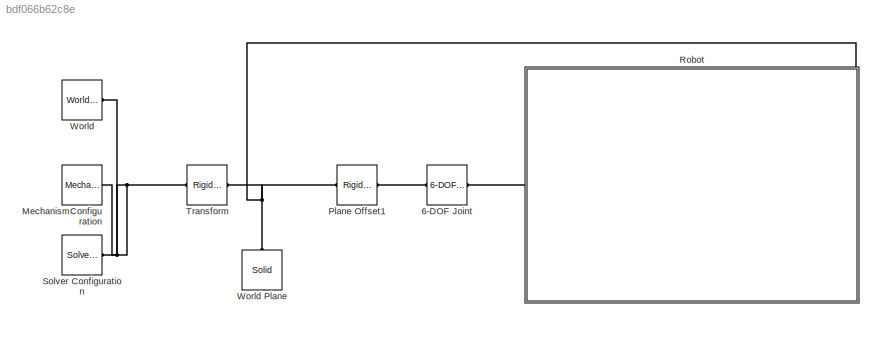
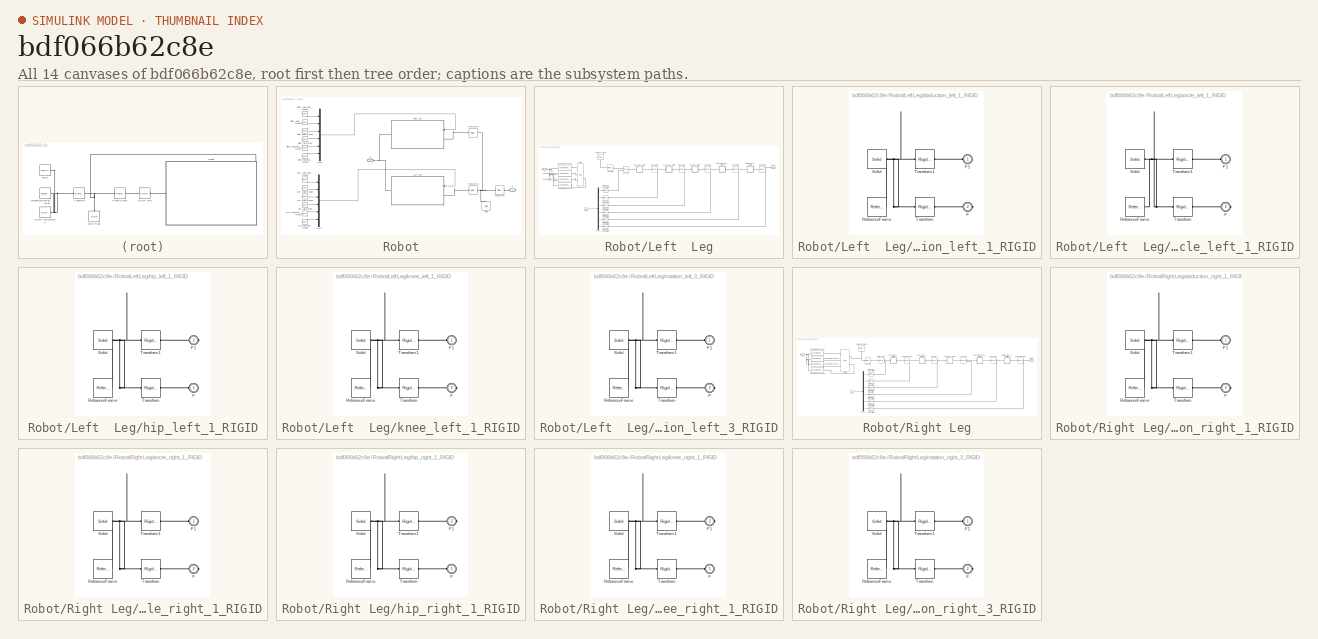
[diagram: thumbnail index - all 14 canvases of the model, root first then tree order]
MODEL slx_bdf066b62c8e
KIND model
CONFIG AbsTol = auto
CONFIG EnableMultiTasking = off
CONFIG FixedStep = 0.001
CONFIG MaxStep = auto
CONFIG MinStep = auto
CONFIG RelTol = 1e-3
CONFIG SampleTimeConstraint = Unconstrained
CONFIG Solver = FixedStepAuto
CONFIG SolverName = FixedStepAuto
CONFIG StartTime = 0.0
CONFIG StopTime = 10.0
WORKSPACE source: external: MAT-File  (data not in archive)
BLOCK [Reference] 6-DOF Joint  REF=sm_lib/Joints/6-DOF Joint
  Ports = [0, 0, 0, 0, 0, 1, 1]
  SourceBlock = sm_lib/Joints/6-DOF Joint
  SourceProductBaseCode = MS
  SourceProductName = Simscape Multibody
  SourceType = 6-DOF Joint
BLOCK [Reference] MechanismConfiguration  REF=sm_lib/Utilities/Mechanism
Configuration
  Ports = [0, 0, 0, 0, 0, 0, 1]
  SourceBlock = sm_lib/Utilities/Mechanism\nConfiguration
  SourceProductBaseCode = MS
  SourceProductName = Simscape Multibody
  SourceType = Mechanism\nConfiguration
BLOCK [Reference] Plane Offset1  REF=sm_lib/Frames and
Transforms/Rigid
Transform
  Ports = [0, 0, 0, 0, 0, 1, 1]
  SourceBlock = sm_lib/Frames and\nTransforms/Rigid\nTransform
  SourceProductBaseCode = MS
  SourceProductName = Simscape Multibody
  SourceType = Rigid\nTransform
BLOCK [SubSystem] Robot
  Ports = [0, 0, 0, 0, 0, 1, 1]
  RequestExecContextInheritance = off
BLOCK [PMIOPort] Robot/G
  Port = 2
  Side = Left
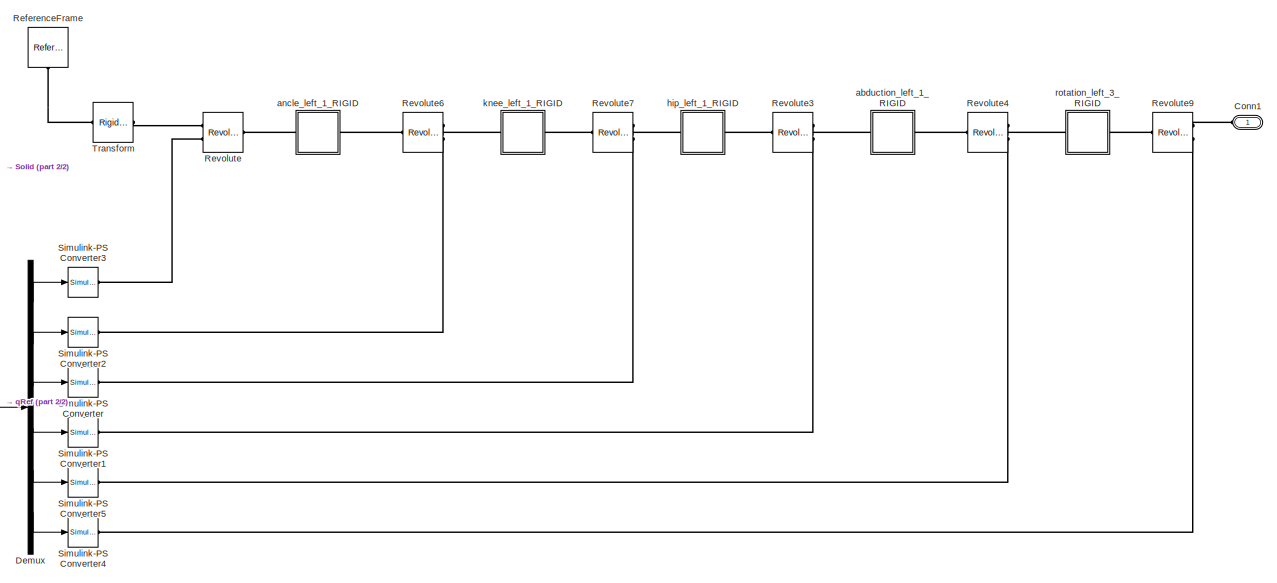
[diagram: Robot/Left  Leg - part 1/2, most of the canvas]
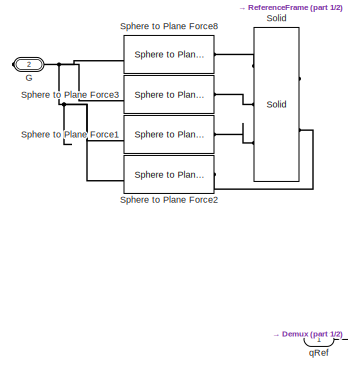
[diagram: Robot/Left  Leg - part 2/2, middle left region]
BLOCK [SubSystem] Robot/Left  Leg
  Ports = [1, 0, 0, 0, 0, 1, 1]
  RequestExecContextInheritance = off
BLOCK [PMIOPort] Robot/Left  Leg/Conn1
  Side = Left
BLOCK [Demux] Robot/Left  Leg/Demux
  DisplayOption = bar
  Outputs = 6
  Ports = [1, 6]
BLOCK [PMIOPort] Robot/Left  Leg/G
  Port = 2
  Side = Right
BLOCK [Reference] Robot/Left  Leg/ReferenceFrame  REF=sm_lib/Frames and
Transforms/Reference
Frame
  Ports = [0, 0, 0, 0, 0, 0, 1]
  SourceBlock = sm_lib/Frames and\nTransforms/Reference\nFrame
  SourceProductBaseCode = MS
  SourceProductName = Simscape Multibody
  SourceType = Reference\nFrame
BLOCK [Reference] Robot/Left  Leg/Revolute  REF=sm_lib/Joints/Revolute Joint
  Ports = [0, 0, 0, 0, 0, 2, 1]
  SourceBlock = sm_lib/Joints/Revolute Joint
  SourceProductBaseCode = MS
  SourceProductName = Simscape Multibody
  SourceType = Revolute Joint
BLOCK [Reference] Robot/Left  Leg/Revolute3  REF=sm_lib/Joints/Revolute Joint
  Ports = [0, 0, 0, 0, 0, 2, 1]
  SourceBlock = sm_lib/Joints/Revolute Joint
  SourceProductBaseCode = MS
  SourceProductName = Simscape Multibody
  SourceType = Revolute Joint
BLOCK [Reference] Robot/Left  Leg/Revolute4  REF=sm_lib/Joints/Revolute Joint
  Ports = [0, 0, 0, 0, 0, 2, 1]
  SourceBlock = sm_lib/Joints/Revolute Joint
  SourceProductBaseCode = MS
  SourceProductName = Simscape Multibody
  SourceType = Revolute Joint
BLOCK [Reference] Robot/Left  Leg/Revolute6  REF=sm_lib/Joints/Revolute Joint
  Ports = [0, 0, 0, 0, 0, 2, 1]
  SourceBlock = sm_lib/Joints/Revolute Joint
  SourceProductBaseCode = MS
  SourceProductName = Simscape Multibody
  SourceType = Revolute Joint
BLOCK [Reference] Robot/Left  Leg/Revolute7  REF=sm_lib/Joints/Revolute Joint
  Ports = [0, 0, 0, 0, 0, 2, 1]
  SourceBlock = sm_lib/Joints/Revolute Joint
  SourceProductBaseCode = MS
  SourceProductName = Simscape Multibody
  SourceType = Revolute Joint
BLOCK [Reference] Robot/Left  Leg/Revolute9  REF=sm_lib/Joints/Revolute Joint
  Ports = [0, 0, 0, 0, 0, 2, 1]
  SourceBlock = sm_lib/Joints/Revolute Joint
  SourceProductBaseCode = MS
  SourceProductName = Simscape Multibody
  SourceType = Revolute Joint
BLOCK [Reference] Robot/Left  Leg/Simulink-PS Converter  REF=nesl_utility/Simulink-PS
Converter
  Ports = [1, 0, 0, 0, 0, 0, 1]
  SourceBlock = nesl_utility/Simulink-PS\nConverter
  SourceProductBaseCode = SS
  SourceProductName = Simscape
  SourceType = Simulink-PS\nConverter
BLOCK [Reference] Robot/Left  Leg/Simulink-PS Converter1  REF=nesl_utility/Simulink-PS
Converter
  Ports = [1, 0, 0, 0, 0, 0, 1]
  SourceBlock = nesl_utility/Simulink-PS\nConverter
  SourceProductBaseCode = SS
  SourceProductName = Simscape
  SourceType = Simulink-PS\nConverter
BLOCK [Reference] Robot/Left  Leg/Simulink-PS Converter2  REF=nesl_utility/Simulink-PS
Converter
  Ports = [1, 0, 0, 0, 0, 0, 1]
  SourceBlock = nesl_utility/Simulink-PS\nConverter
  SourceProductBaseCode = SS
  SourceProductName = Simscape
  SourceType = Simulink-PS\nConverter
BLOCK [Reference] Robot/Left  Leg/Simulink-PS Converter3  REF=nesl_utility/Simulink-PS
Converter
  Ports = [1, 0, 0, 0, 0, 0, 1]
  SourceBlock = nesl_utility/Simulink-PS\nConverter
  SourceProductBaseCode = SS
  SourceProductName = Simscape
  SourceType = Simulink-PS\nConverter
BLOCK [Reference] Robot/Left  Leg/Simulink-PS Converter4  REF=nesl_utility/Simulink-PS
Converter
  Ports = [1, 0, 0, 0, 0, 0, 1]
  SourceBlock = nesl_utility/Simulink-PS\nConverter
  SourceProductBaseCode = SS
  SourceProductName = Simscape
  SourceType = Simulink-PS\nConverter
BLOCK [Reference] Robot/Left  Leg/Simulink-PS Converter5  REF=nesl_utility/Simulink-PS
Converter
  Ports = [1, 0, 0, 0, 0, 0, 1]
  SourceBlock = nesl_utility/Simulink-PS\nConverter
  SourceProductBaseCode = SS
  SourceProductName = Simscape
  SourceType = Simulink-PS\nConverter
BLOCK [Reference] Robot/Left  Leg/Solid  REF=sm_lib/Body Elements/Solid
  Ports = [0, 0, 0, 0, 0, 3, 2]
  SourceBlock = sm_lib/Body Elements/Solid
  SourceProductBaseCode = MS
  SourceProductName = Simscape Multibody
  SourceType = Solid
BLOCK [Reference] Robot/Left  Leg/Sphere to Plane Force1  REF=Contact_Forces_Lib/3D/Sphere to Plane Force
  Ports = [0, 1, 0, 0, 0, 1, 1]
  SourceBlock = Contact_Forces_Lib/3D/Sphere to Plane Force
  SourceProductName = Simscape Multibody Contact Forces Library
  SourceType = Sphere to Plane Force
BLOCK [Reference] Robot/Left  Leg/Sphere to Plane Force2  REF=Contact_Forces_Lib/3D/Sphere to Plane Force
  Ports = [0, 1, 0, 0, 0, 1, 1]
  SourceBlock = Contact_Forces_Lib/3D/Sphere to Plane Force
  SourceProductName = Simscape Multibody Contact Forces Library
  SourceType = Sphere to Plane Force
BLOCK [Reference] Robot/Left  Leg/Sphere to Plane Force3  REF=Contact_Forces_Lib/3D/Sphere to Plane Force
  Ports = [0, 1, 0, 0, 0, 1, 1]
  SourceBlock = Contact_Forces_Lib/3D/Sphere to Plane Force
  SourceProductName = Simscape Multibody Contact Forces Library
  SourceType = Sphere to Plane Force
BLOCK [Reference] Robot/Left  Leg/Sphere to Plane Force8  REF=Contact_Forces_Lib/3D/Sphere to Plane Force
  Ports = [0, 1, 0, 0, 0, 1, 1]
  SourceBlock = Contact_Forces_Lib/3D/Sphere to Plane Force
  SourceProductName = Simscape Multibody Contact Forces Library
  SourceType = Sphere to Plane Force
BLOCK [Reference] Robot/Left  Leg/Transform  REF=sm_lib/Frames and
Transforms/Rigid
Transform
  Ports = [0, 0, 0, 0, 0, 1, 1]
  SourceBlock = sm_lib/Frames and\nTransforms/Rigid\nTransform
  SourceProductBaseCode = MS
  SourceProductName = Simscape Multibody
  SourceType = Rigid\nTransform
BLOCK [SubSystem] Robot/Left  Leg/abduction_left_1_RIGID
  Ports = [0, 0, 0, 0, 0, 1, 1]
  RequestExecContextInheritance = off
BLOCK [PMIOPort] Robot/Left  Leg/abduction_left_1_RIGID/F
  Port = 2
  Side = Right
BLOCK [PMIOPort] Robot/Left  Leg/abduction_left_1_RIGID/F1
  Side = Left
BLOCK [Reference] Robot/Left  Leg/abduction_left_1_RIGID/ReferenceFrame  REF=sm_lib/Frames and
Transforms/Reference
Frame
  Ports = [0, 0, 0, 0, 0, 0, 1]
  SourceBlock = sm_lib/Frames and\nTransforms/Reference\nFrame
  SourceProductBaseCode = MS
  SourceProductName = Simscape Multibody
  SourceType = Reference\nFrame
BLOCK [Reference] Robot/Left  Leg/abduction_left_1_RIGID/Solid  REF=sm_lib/Body Elements/Solid
  Ports = [0, 0, 0, 0, 0, 0, 1]
  SourceBlock = sm_lib/Body Elements/Solid
  SourceProductBaseCode = MS
  SourceProductName = Simscape Multibody
  SourceType = Solid
BLOCK [Reference] Robot/Left  Leg/abduction_left_1_RIGID/Transform  REF=sm_lib/Frames and
Transforms/Rigid
Transform
  Ports = [0, 0, 0, 0, 0, 1, 1]
  SourceBlock = sm_lib/Frames and\nTransforms/Rigid\nTransform
  SourceProductBaseCode = MS
  SourceProductName = Simscape Multibody
  SourceType = Rigid\nTransform
BLOCK [Reference] Robot/Left  Leg/abduction_left_1_RIGID/Transform1  REF=sm_lib/Frames and
Transforms/Rigid
Transform
  Ports = [0, 0, 0, 0, 0, 1, 1]
  SourceBlock = sm_lib/Frames and\nTransforms/Rigid\nTransform
  SourceProductBaseCode = MS
  SourceProductName = Simscape Multibody
  SourceType = Rigid\nTransform
BLOCK [SubSystem] Robot/Left  Leg/ancle_left_1_RIGID
  Ports = [0, 0, 0, 0, 0, 1, 1]
  RequestExecContextInheritance = off
BLOCK [PMIOPort] Robot/Left  Leg/ancle_left_1_RIGID/F
  Port = 2
  Side = Right
BLOCK [PMIOPort] Robot/Left  Leg/ancle_left_1_RIGID/F1
  Side = Left
BLOCK [Reference] Robot/Left  Leg/ancle_left_1_RIGID/ReferenceFrame  REF=sm_lib/Frames and
Transforms/Reference
Frame
  Ports = [0, 0, 0, 0, 0, 0, 1]
  SourceBlock = sm_lib/Frames and\nTransforms/Reference\nFrame
  SourceProductBaseCode = MS
  SourceProductName = Simscape Multibody
  SourceType = Reference\nFrame
BLOCK [Reference] Robot/Left  Leg/ancle_left_1_RIGID/Solid  REF=sm_lib/Body Elements/Solid
  Ports = [0, 0, 0, 0, 0, 0, 1]
  SourceBlock = sm_lib/Body Elements/Solid
  SourceProductBaseCode = MS
  SourceProductName = Simscape Multibody
  SourceType = Solid
BLOCK [Reference] Robot/Left  Leg/ancle_left_1_RIGID/Transform  REF=sm_lib/Frames and
Transforms/Rigid
Transform
  Ports = [0, 0, 0, 0, 0, 1, 1]
  SourceBlock = sm_lib/Frames and\nTransforms/Rigid\nTransform
  SourceProductBaseCode = MS
  SourceProductName = Simscape Multibody
  SourceType = Rigid\nTransform
BLOCK [Reference] Robot/Left  Leg/ancle_left_1_RIGID/Transform1  REF=sm_lib/Frames and
Transforms/Rigid
Transform
  Ports = [0, 0, 0, 0, 0, 1, 1]
  SourceBlock = sm_lib/Frames and\nTransforms/Rigid\nTransform
  SourceProductBaseCode = MS
  SourceProductName = Simscape Multibody
  SourceType = Rigid\nTransform
BLOCK [SubSystem] Robot/Left  Leg/hip_left_1_RIGID
  Ports = [0, 0, 0, 0, 0, 1, 1]
  RequestExecContextInheritance = off
BLOCK [PMIOPort] Robot/Left  Leg/hip_left_1_RIGID/F
  Side = Left
BLOCK [PMIOPort] Robot/Left  Leg/hip_left_1_RIGID/F1
  Port = 2
  Side = Right
BLOCK [Reference] Robot/Left  Leg/hip_left_1_RIGID/ReferenceFrame  REF=sm_lib/Frames and
Transforms/Reference
Frame
  Ports = [0, 0, 0, 0, 0, 0, 1]
  SourceBlock = sm_lib/Frames and\nTransforms/Reference\nFrame
  SourceProductBaseCode = MS
  SourceProductName = Simscape Multibody
  SourceType = Reference\nFrame
BLOCK [Reference] Robot/Left  Leg/hip_left_1_RIGID/Solid  REF=sm_lib/Body Elements/Solid
  Ports = [0, 0, 0, 0, 0, 0, 1]
  SourceBlock = sm_lib/Body Elements/Solid
  SourceProductBaseCode = MS
  SourceProductName = Simscape Multibody
  SourceType = Solid
BLOCK [Reference] Robot/Left  Leg/hip_left_1_RIGID/Transform  REF=sm_lib/Frames and
Transforms/Rigid
Transform
  Ports = [0, 0, 0, 0, 0, 1, 1]
  SourceBlock = sm_lib/Frames and\nTransforms/Rigid\nTransform
  SourceProductBaseCode = MS
  SourceProductName = Simscape Multibody
  SourceType = Rigid\nTransform
BLOCK [Reference] Robot/Left  Leg/hip_left_1_RIGID/Transform1  REF=sm_lib/Frames and
Transforms/Rigid
Transform
  Ports = [0, 0, 0, 0, 0, 1, 1]
  SourceBlock = sm_lib/Frames and\nTransforms/Rigid\nTransform
  SourceProductBaseCode = MS
  SourceProductName = Simscape Multibody
  SourceType = Rigid\nTransform
BLOCK [SubSystem] Robot/Left  Leg/knee_left_1_RIGID
  Ports = [0, 0, 0, 0, 0, 1, 1]
  RequestExecContextInheritance = off
BLOCK [PMIOPort] Robot/Left  Leg/knee_left_1_RIGID/F
  Port = 2
  Side = Right
BLOCK [PMIOPort] Robot/Left  Leg/knee_left_1_RIGID/F1
  Side = Left
BLOCK [Reference] Robot/Left  Leg/knee_left_1_RIGID/ReferenceFrame  REF=sm_lib/Frames and
Transforms/Reference
Frame
  Ports = [0, 0, 0, 0, 0, 0, 1]
  SourceBlock = sm_lib/Frames and\nTransforms/Reference\nFrame
  SourceProductBaseCode = MS
  SourceProductName = Simscape Multibody
  SourceType = Reference\nFrame
BLOCK [Reference] Robot/Left  Leg/knee_left_1_RIGID/Solid  REF=sm_lib/Body Elements/Solid
  Ports = [0, 0, 0, 0, 0, 0, 1]
  SourceBlock = sm_lib/Body Elements/Solid
  SourceProductBaseCode = MS
  SourceProductName = Simscape Multibody
  SourceType = Solid
BLOCK [Reference] Robot/Left  Leg/knee_left_1_RIGID/Transform  REF=sm_lib/Frames and
Transforms/Rigid
Transform
  Ports = [0, 0, 0, 0, 0, 1, 1]
  SourceBlock = sm_lib/Frames and\nTransforms/Rigid\nTransform
  SourceProductBaseCode = MS
  SourceProductName = Simscape Multibody
  SourceType = Rigid\nTransform
BLOCK [Reference] Robot/Left  Leg/knee_left_1_RIGID/Transform1  REF=sm_lib/Frames and
Transforms/Rigid
Transform
  Ports = [0, 0, 0, 0, 0, 1, 1]
  SourceBlock = sm_lib/Frames and\nTransforms/Rigid\nTransform
  SourceProductBaseCode = MS
  SourceProductName = Simscape Multibody
  SourceType = Rigid\nTransform
BLOCK [Inport] Robot/Left  Leg/qRef
  IconDisplay = Port number
BLOCK [SubSystem] Robot/Left  Leg/rotation_left_3_RIGID
  Ports = [0, 0, 0, 0, 0, 1, 1]
  RequestExecContextInheritance = off
BLOCK [PMIOPort] Robot/Left  Leg/rotation_left_3_RIGID/F
  Port = 2
  Side = Right
BLOCK [PMIOPort] Robot/Left  Leg/rotation_left_3_RIGID/F1
  Side = Left
BLOCK [Reference] Robot/Left  Leg/rotation_left_3_RIGID/ReferenceFrame  REF=sm_lib/Frames and
Transforms/Reference
Frame
  Ports = [0, 0, 0, 0, 0, 0, 1]
  SourceBlock = sm_lib/Frames and\nTransforms/Reference\nFrame
  SourceProductBaseCode = MS
  SourceProductName = Simscape Multibody
  SourceType = Reference\nFrame
BLOCK [Reference] Robot/Left  Leg/rotation_left_3_RIGID/Solid  REF=sm_lib/Body Elements/Solid
  Ports = [0, 0, 0, 0, 0, 0, 1]
  SourceBlock = sm_lib/Body Elements/Solid
  SourceProductBaseCode = MS
  SourceProductName = Simscape Multibody
  SourceType = Solid
BLOCK [Reference] Robot/Left  Leg/rotation_left_3_RIGID/Transform  REF=sm_lib/Frames and
Transforms/Rigid
Transform
  Ports = [0, 0, 0, 0, 0, 1, 1]
  SourceBlock = sm_lib/Frames and\nTransforms/Rigid\nTransform
  SourceProductBaseCode = MS
  SourceProductName = Simscape Multibody
  SourceType = Rigid\nTransform
BLOCK [Reference] Robot/Left  Leg/rotation_left_3_RIGID/Transform1  REF=sm_lib/Frames and
Transforms/Rigid
Transform
  Ports = [0, 0, 0, 0, 0, 1, 1]
  SourceBlock = sm_lib/Frames and\nTransforms/Rigid\nTransform
  SourceProductBaseCode = MS
  SourceProductName = Simscape Multibody
  SourceType = Rigid\nTransform
BLOCK [Reference] Robot/Left_Abduction_Motion  REF=simulink/Sources/Repeating
Sequence
  Ports = [0, 1]
  SourceBlock = simulink/Sources/Repeating\nSequence
  SourceProductBaseCode = SL
  SourceProductName = Simulink
  SourceType = Repeating table
BLOCK [Reference] Robot/Left_Ankle Motion  REF=simulink/Sources/Repeating
Sequence
  Ports = [0, 1]
  SourceBlock = simulink/Sources/Repeating\nSequence
  SourceProductBaseCode = SL
  SourceProductName = Simulink
  SourceType = Repeating table
BLOCK [Reference] Robot/Left_Ankle_Twist_Motion  REF=simulink/Sources/Repeating
Sequence
  Ports = [0, 1]
  SourceBlock = simulink/Sources/Repeating\nSequence
  SourceProductBaseCode = SL
  SourceProductName = Simulink
  SourceType = Repeating table
BLOCK [Reference] Robot/Left_Hip_Motion  REF=simulink/Sources/Repeating
Sequence
  Ports = [0, 1]
  SourceBlock = simulink/Sources/Repeating\nSequence
  SourceProductBaseCode = SL
  SourceProductName = Simulink
  SourceType = Repeating table
BLOCK [Reference] Robot/Left_Knee_Motion  REF=simulink/Sources/Repeating
Sequence
  Ports = [0, 1]
  SourceBlock = simulink/Sources/Repeating\nSequence
  SourceProductBaseCode = SL
  SourceProductName = Simulink
  SourceType = Repeating table
BLOCK [Reference] Robot/Left_Rotation_Motion  REF=simulink/Sources/Repeating
Sequence
  Ports = [0, 1]
  SourceBlock = simulink/Sources/Repeating\nSequence
  SourceProductBaseCode = SL
  SourceProductName = Simulink
  SourceType = Repeating table
BLOCK [Mux] Robot/Mux
  DisplayOption = bar
  Inputs = 6
  Ports = [6, 1]
BLOCK [Mux] Robot/Mux1
  DisplayOption = bar
  Inputs = 6
  Ports = [6, 1]
BLOCK [PMIOPort] Robot/R
  Side = Right
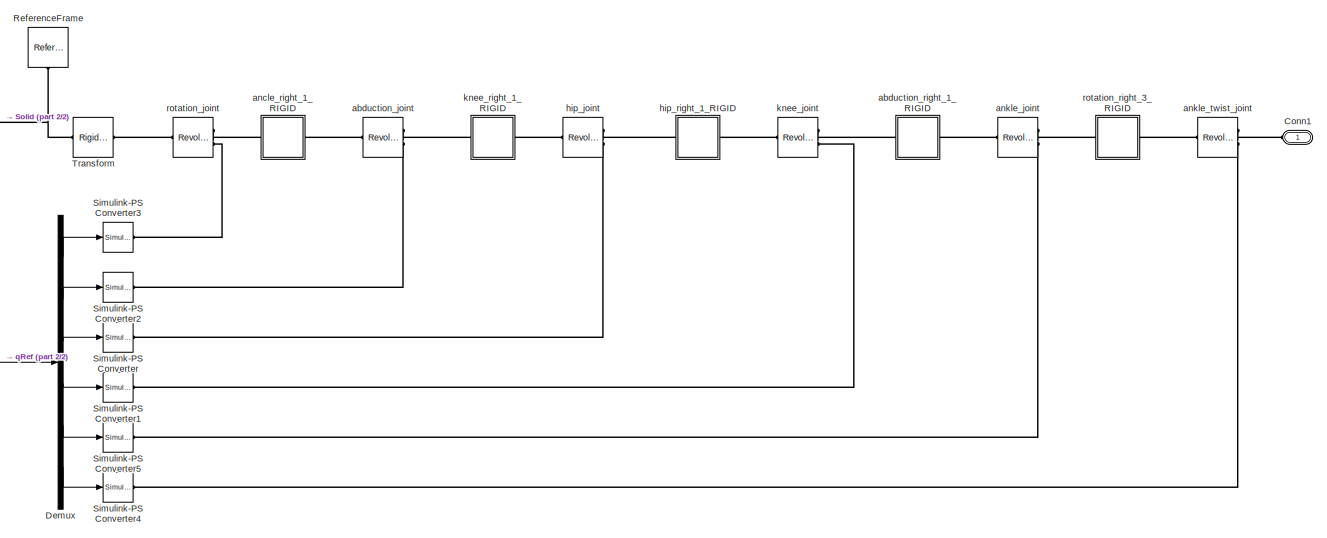
[diagram: Robot/Right Leg - part 1/2, most of the canvas]
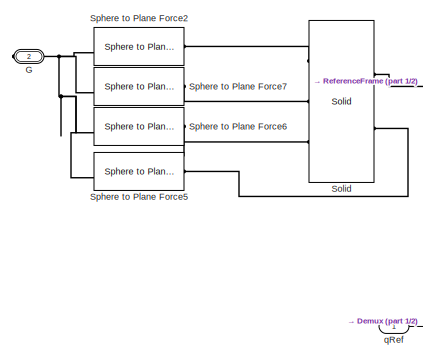
[diagram: Robot/Right Leg - part 2/2, middle left region]
BLOCK [SubSystem] Robot/Right Leg
  Ports = [1, 0, 0, 0, 0, 1, 1]
  RequestExecContextInheritance = off
BLOCK [PMIOPort] Robot/Right Leg/Conn1
  Side = Left
BLOCK [Demux] Robot/Right Leg/Demux
  DisplayOption = bar
  Outputs = 6
  Ports = [1, 6]
BLOCK [PMIOPort] Robot/Right Leg/G
  Port = 2
  Side = Right
BLOCK [Reference] Robot/Right Leg/ReferenceFrame  REF=sm_lib/Frames and
Transforms/Reference
Frame
  Ports = [0, 0, 0, 0, 0, 0, 1]
  SourceBlock = sm_lib/Frames and\nTransforms/Reference\nFrame
  SourceProductBaseCode = MS
  SourceProductName = Simscape Multibody
  SourceType = Reference\nFrame
BLOCK [Reference] Robot/Right Leg/Simulink-PS Converter  REF=nesl_utility/Simulink-PS
Converter
  Ports = [1, 0, 0, 0, 0, 0, 1]
  SourceBlock = nesl_utility/Simulink-PS\nConverter
  SourceProductBaseCode = SS
  SourceProductName = Simscape
  SourceType = Simulink-PS\nConverter
BLOCK [Reference] Robot/Right Leg/Simulink-PS Converter1  REF=nesl_utility/Simulink-PS
Converter
  Ports = [1, 0, 0, 0, 0, 0, 1]
  SourceBlock = nesl_utility/Simulink-PS\nConverter
  SourceProductBaseCode = SS
  SourceProductName = Simscape
  SourceType = Simulink-PS\nConverter
BLOCK [Reference] Robot/Right Leg/Simulink-PS Converter2  REF=nesl_utility/Simulink-PS
Converter
  Ports = [1, 0, 0, 0, 0, 0, 1]
  SourceBlock = nesl_utility/Simulink-PS\nConverter
  SourceProductBaseCode = SS
  SourceProductName = Simscape
  SourceType = Simulink-PS\nConverter
BLOCK [Reference] Robot/Right Leg/Simulink-PS Converter3  REF=nesl_utility/Simulink-PS
Converter
  Ports = [1, 0, 0, 0, 0, 0, 1]
  SourceBlock = nesl_utility/Simulink-PS\nConverter
  SourceProductBaseCode = SS
  SourceProductName = Simscape
  SourceType = Simulink-PS\nConverter
BLOCK [Reference] Robot/Right Leg/Simulink-PS Converter4  REF=nesl_utility/Simulink-PS
Converter
  Ports = [1, 0, 0, 0, 0, 0, 1]
  SourceBlock = nesl_utility/Simulink-PS\nConverter
  SourceProductBaseCode = SS
  SourceProductName = Simscape
  SourceType = Simulink-PS\nConverter
BLOCK [Reference] Robot/Right Leg/Simulink-PS Converter5  REF=nesl_utility/Simulink-PS
Converter
  Ports = [1, 0, 0, 0, 0, 0, 1]
  SourceBlock = nesl_utility/Simulink-PS\nConverter
  SourceProductBaseCode = SS
  SourceProductName = Simscape
  SourceType = Simulink-PS\nConverter
BLOCK [Reference] Robot/Right Leg/Solid  REF=sm_lib/Body Elements/Solid
  Ports = [0, 0, 0, 0, 0, 3, 2]
  SourceBlock = sm_lib/Body Elements/Solid
  SourceProductBaseCode = MS
  SourceProductName = Simscape Multibody
  SourceType = Solid
BLOCK [Reference] Robot/Right Leg/Sphere to Plane Force2  REF=Contact_Forces_Lib/3D/Sphere to Plane Force
  Ports = [0, 1, 0, 0, 0, 1, 1]
  SourceBlock = Contact_Forces_Lib/3D/Sphere to Plane Force
  SourceProductName = Simscape Multibody Contact Forces Library
  SourceType = Sphere to Plane Force
BLOCK [Reference] Robot/Right Leg/Sphere to Plane Force5  REF=Contact_Forces_Lib/3D/Sphere to Plane Force
  Ports = [0, 1, 0, 0, 0, 1, 1]
  SourceBlock = Contact_Forces_Lib/3D/Sphere to Plane Force
  SourceProductName = Simscape Multibody Contact Forces Library
  SourceType = Sphere to Plane Force
BLOCK [Reference] Robot/Right Leg/Sphere to Plane Force6  REF=Contact_Forces_Lib/3D/Sphere to Plane Force
  Ports = [0, 1, 0, 0, 0, 1, 1]
  SourceBlock = Contact_Forces_Lib/3D/Sphere to Plane Force
  SourceProductName = Simscape Multibody Contact Forces Library
  SourceType = Sphere to Plane Force
BLOCK [Reference] Robot/Right Leg/Sphere to Plane Force7  REF=Contact_Forces_Lib/3D/Sphere to Plane Force
  Ports = [0, 1, 0, 0, 0, 1, 1]
  SourceBlock = Contact_Forces_Lib/3D/Sphere to Plane Force
  SourceProductName = Simscape Multibody Contact Forces Library
  SourceType = Sphere to Plane Force
BLOCK [Reference] Robot/Right Leg/Transform  REF=sm_lib/Frames and
Transforms/Rigid
Transform
  Ports = [0, 0, 0, 0, 0, 1, 1]
  SourceBlock = sm_lib/Frames and\nTransforms/Rigid\nTransform
  SourceProductBaseCode = MS
  SourceProductName = Simscape Multibody
  SourceType = Rigid\nTransform
BLOCK [Reference] Robot/Right Leg/abduction_joint  REF=sm_lib/Joints/Revolute Joint
  Ports = [0, 0, 0, 0, 0, 2, 1]
  SourceBlock = sm_lib/Joints/Revolute Joint
  SourceProductBaseCode = MS
  SourceProductName = Simscape Multibody
  SourceType = Revolute Joint
BLOCK [SubSystem] Robot/Right Leg/abduction_right_1_RIGID
  Ports = [0, 0, 0, 0, 0, 1, 1]
  RequestExecContextInheritance = off
BLOCK [PMIOPort] Robot/Right Leg/abduction_right_1_RIGID/F
  Port = 2
  Side = Right
BLOCK [PMIOPort] Robot/Right Leg/abduction_right_1_RIGID/F1
  Side = Left
BLOCK [Reference] Robot/Right Leg/abduction_right_1_RIGID/ReferenceFrame  REF=sm_lib/Frames and
Transforms/Reference
Frame
  Ports = [0, 0, 0, 0, 0, 0, 1]
  SourceBlock = sm_lib/Frames and\nTransforms/Reference\nFrame
  SourceProductBaseCode = MS
  SourceProductName = Simscape Multibody
  SourceType = Reference\nFrame
BLOCK [Reference] Robot/Right Leg/abduction_right_1_RIGID/Solid  REF=sm_lib/Body Elements/Solid
  Ports = [0, 0, 0, 0, 0, 0, 1]
  SourceBlock = sm_lib/Body Elements/Solid
  SourceProductBaseCode = MS
  SourceProductName = Simscape Multibody
  SourceType = Solid
BLOCK [Reference] Robot/Right Leg/abduction_right_1_RIGID/Transform  REF=sm_lib/Frames and
Transforms/Rigid
Transform
  Ports = [0, 0, 0, 0, 0, 1, 1]
  SourceBlock = sm_lib/Frames and\nTransforms/Rigid\nTransform
  SourceProductBaseCode = MS
  SourceProductName = Simscape Multibody
  SourceType = Rigid\nTransform
BLOCK [Reference] Robot/Right Leg/abduction_right_1_RIGID/Transform1  REF=sm_lib/Frames and
Transforms/Rigid
Transform
  Ports = [0, 0, 0, 0, 0, 1, 1]
  SourceBlock = sm_lib/Frames and\nTransforms/Rigid\nTransform
  SourceProductBaseCode = MS
  SourceProductName = Simscape Multibody
  SourceType = Rigid\nTransform
BLOCK [SubSystem] Robot/Right Leg/ancle_right_1_RIGID
  Ports = [0, 0, 0, 0, 0, 1, 1]
  RequestExecContextInheritance = off
BLOCK [PMIOPort] Robot/Right Leg/ancle_right_1_RIGID/F
  Port = 2
  Side = Right
BLOCK [PMIOPort] Robot/Right Leg/ancle_right_1_RIGID/F1
  Side = Left
BLOCK [Reference] Robot/Right Leg/ancle_right_1_RIGID/ReferenceFrame  REF=sm_lib/Frames and
Transforms/Reference
Frame
  Ports = [0, 0, 0, 0, 0, 0, 1]
  SourceBlock = sm_lib/Frames and\nTransforms/Reference\nFrame
  SourceProductBaseCode = MS
  SourceProductName = Simscape Multibody
  SourceType = Reference\nFrame
BLOCK [Reference] Robot/Right Leg/ancle_right_1_RIGID/Solid  REF=sm_lib/Body Elements/Solid
  Ports = [0, 0, 0, 0, 0, 0, 1]
  SourceBlock = sm_lib/Body Elements/Solid
  SourceProductBaseCode = MS
  SourceProductName = Simscape Multibody
  SourceType = Solid
BLOCK [Reference] Robot/Right Leg/ancle_right_1_RIGID/Transform  REF=sm_lib/Frames and
Transforms/Rigid
Transform
  Ports = [0, 0, 0, 0, 0, 1, 1]
  SourceBlock = sm_lib/Frames and\nTransforms/Rigid\nTransform
  SourceProductBaseCode = MS
  SourceProductName = Simscape Multibody
  SourceType = Rigid\nTransform
BLOCK [Reference] Robot/Right Leg/ancle_right_1_RIGID/Transform1  REF=sm_lib/Frames and
Transforms/Rigid
Transform
  Ports = [0, 0, 0, 0, 0, 1, 1]
  SourceBlock = sm_lib/Frames and\nTransforms/Rigid\nTransform
  SourceProductBaseCode = MS
  SourceProductName = Simscape Multibody
  SourceType = Rigid\nTransform
BLOCK [Reference] Robot/Right Leg/ankle_joint  REF=sm_lib/Joints/Revolute Joint
  Ports = [0, 0, 0, 0, 0, 2, 1]
  SourceBlock = sm_lib/Joints/Revolute Joint
  SourceProductBaseCode = MS
  SourceProductName = Simscape Multibody
  SourceType = Revolute Joint
BLOCK [Reference] Robot/Right Leg/ankle_twist_joint  REF=sm_lib/Joints/Revolute Joint
  Ports = [0, 0, 0, 0, 0, 2, 1]
  SourceBlock = sm_lib/Joints/Revolute Joint
  SourceProductBaseCode = MS
  SourceProductName = Simscape Multibody
  SourceType = Revolute Joint
BLOCK [Reference] Robot/Right Leg/hip_joint  REF=sm_lib/Joints/Revolute Joint
  Ports = [0, 0, 0, 0, 0, 2, 1]
  SourceBlock = sm_lib/Joints/Revolute Joint
  SourceProductBaseCode = MS
  SourceProductName = Simscape Multibody
  SourceType = Revolute Joint
BLOCK [SubSystem] Robot/Right Leg/hip_right_1_RIGID
  Ports = [0, 0, 0, 0, 0, 1, 1]
  RequestExecContextInheritance = off
BLOCK [PMIOPort] Robot/Right Leg/hip_right_1_RIGID/F
  Side = Left
BLOCK [PMIOPort] Robot/Right Leg/hip_right_1_RIGID/F1
  Port = 2
  Side = Right
BLOCK [Reference] Robot/Right Leg/hip_right_1_RIGID/ReferenceFrame  REF=sm_lib/Frames and
Transforms/Reference
Frame
  Ports = [0, 0, 0, 0, 0, 0, 1]
  SourceBlock = sm_lib/Frames and\nTransforms/Reference\nFrame
  SourceProductBaseCode = MS
  SourceProductName = Simscape Multibody
  SourceType = Reference\nFrame
BLOCK [Reference] Robot/Right Leg/hip_right_1_RIGID/Solid  REF=sm_lib/Body Elements/Solid
  Ports = [0, 0, 0, 0, 0, 0, 1]
  SourceBlock = sm_lib/Body Elements/Solid
  SourceProductBaseCode = MS
  SourceProductName = Simscape Multibody
  SourceType = Solid
BLOCK [Reference] Robot/Right Leg/hip_right_1_RIGID/Transform  REF=sm_lib/Frames and
Transforms/Rigid
Transform
  Ports = [0, 0, 0, 0, 0, 1, 1]
  SourceBlock = sm_lib/Frames and\nTransforms/Rigid\nTransform
  SourceProductBaseCode = MS
  SourceProductName = Simscape Multibody
  SourceType = Rigid\nTransform
BLOCK [Reference] Robot/Right Leg/hip_right_1_RIGID/Transform1  REF=sm_lib/Frames and
Transforms/Rigid
Transform
  Ports = [0, 0, 0, 0, 0, 1, 1]
  SourceBlock = sm_lib/Frames and\nTransforms/Rigid\nTransform
  SourceProductBaseCode = MS
  SourceProductName = Simscape Multibody
  SourceType = Rigid\nTransform
BLOCK [Reference] Robot/Right Leg/knee_joint  REF=sm_lib/Joints/Revolute Joint
  Ports = [0, 0, 0, 0, 0, 2, 1]
  SourceBlock = sm_lib/Joints/Revolute Joint
  SourceProductBaseCode = MS
  SourceProductName = Simscape Multibody
  SourceType = Revolute Joint
BLOCK [SubSystem] Robot/Right Leg/knee_right_1_RIGID
  Ports = [0, 0, 0, 0, 0, 1, 1]
  RequestExecContextInheritance = off
BLOCK [PMIOPort] Robot/Right Leg/knee_right_1_RIGID/F
  Side = Left
BLOCK [PMIOPort] Robot/Right Leg/knee_right_1_RIGID/F1
  Port = 2
  Side = Right
BLOCK [Reference] Robot/Right Leg/knee_right_1_RIGID/ReferenceFrame  REF=sm_lib/Frames and
Transforms/Reference
Frame
  Ports = [0, 0, 0, 0, 0, 0, 1]
  SourceBlock = sm_lib/Frames and\nTransforms/Reference\nFrame
  SourceProductBaseCode = MS
  SourceProductName = Simscape Multibody
  SourceType = Reference\nFrame
BLOCK [Reference] Robot/Right Leg/knee_right_1_RIGID/Solid  REF=sm_lib/Body Elements/Solid
  Ports = [0, 0, 0, 0, 0, 0, 1]
  SourceBlock = sm_lib/Body Elements/Solid
  SourceProductBaseCode = MS
  SourceProductName = Simscape Multibody
  SourceType = Solid
BLOCK [Reference] Robot/Right Leg/knee_right_1_RIGID/Transform  REF=sm_lib/Frames and
Transforms/Rigid
Transform
  Ports = [0, 0, 0, 0, 0, 1, 1]
  SourceBlock = sm_lib/Frames and\nTransforms/Rigid\nTransform
  SourceProductBaseCode = MS
  SourceProductName = Simscape Multibody
  SourceType = Rigid\nTransform
BLOCK [Reference] Robot/Right Leg/knee_right_1_RIGID/Transform1  REF=sm_lib/Frames and
Transforms/Rigid
Transform
  Ports = [0, 0, 0, 0, 0, 1, 1]
  SourceBlock = sm_lib/Frames and\nTransforms/Rigid\nTransform
  SourceProductBaseCode = MS
  SourceProductName = Simscape Multibody
  SourceType = Rigid\nTransform
BLOCK [Inport] Robot/Right Leg/qRef
  IconDisplay = Port number
BLOCK [Reference] Robot/Right Leg/rotation_joint  REF=sm_lib/Joints/Revolute Joint
  Ports = [0, 0, 0, 0, 0, 2, 1]
  SourceBlock = sm_lib/Joints/Revolute Joint
  SourceProductBaseCode = MS
  SourceProductName = Simscape Multibody
  SourceType = Revolute Joint
BLOCK [SubSystem] Robot/Right Leg/rotation_right_3_RIGID
  Ports = [0, 0, 0, 0, 0, 1, 1]
  RequestExecContextInheritance = off
BLOCK [PMIOPort] Robot/Right Leg/rotation_right_3_RIGID/F
  Port = 2
  Side = Right
BLOCK [PMIOPort] Robot/Right Leg/rotation_right_3_RIGID/F1
  Side = Left
BLOCK [Reference] Robot/Right Leg/rotation_right_3_RIGID/ReferenceFrame  REF=sm_lib/Frames and
Transforms/Reference
Frame
  Ports = [0, 0, 0, 0, 0, 0, 1]
  SourceBlock = sm_lib/Frames and\nTransforms/Reference\nFrame
  SourceProductBaseCode = MS
  SourceProductName = Simscape Multibody
  SourceType = Reference\nFrame
BLOCK [Reference] Robot/Right Leg/rotation_right_3_RIGID/Solid  REF=sm_lib/Body Elements/Solid
  Ports = [0, 0, 0, 0, 0, 0, 1]
  SourceBlock = sm_lib/Body Elements/Solid
  SourceProductBaseCode = MS
  SourceProductName = Simscape Multibody
  SourceType = Solid
BLOCK [Reference] Robot/Right Leg/rotation_right_3_RIGID/Transform  REF=sm_lib/Frames and
Transforms/Rigid
Transform
  Ports = [0, 0, 0, 0, 0, 1, 1]
  SourceBlock = sm_lib/Frames and\nTransforms/Rigid\nTransform
  SourceProductBaseCode = MS
  SourceProductName = Simscape Multibody
  SourceType = Rigid\nTransform
BLOCK [Reference] Robot/Right Leg/rotation_right_3_RIGID/Transform1  REF=sm_lib/Frames and
Transforms/Rigid
Transform
  Ports = [0, 0, 0, 0, 0, 1, 1]
  SourceBlock = sm_lib/Frames and\nTransforms/Rigid\nTransform
  SourceProductBaseCode = MS
  SourceProductName = Simscape Multibody
  SourceType = Rigid\nTransform
BLOCK [Reference] Robot/Right_Abduction_Motion  REF=simulink/Sources/Repeating
Sequence
  Ports = [0, 1]
  SourceBlock = simulink/Sources/Repeating\nSequence
  SourceProductBaseCode = SL
  SourceProductName = Simulink
  SourceType = Repeating table
BLOCK [Reference] Robot/Right_Ankle_Motion  REF=simulink/Sources/Repeating
Sequence
  Ports = [0, 1]
  SourceBlock = simulink/Sources/Repeating\nSequence
  SourceProductBaseCode = SL
  SourceProductName = Simulink
  SourceType = Repeating table
BLOCK [Reference] Robot/Right_Ankle_Twist_Motion  REF=simulink/Sources/Repeating
Sequence
  Ports = [0, 1]
  SourceBlock = simulink/Sources/Repeating\nSequence
  SourceProductBaseCode = SL
  SourceProductName = Simulink
  SourceType = Repeating table
BLOCK [Reference] Robot/Right_Hip_Motion  REF=simulink/Sources/Repeating
Sequence
  Ports = [0, 1]
  SourceBlock = simulink/Sources/Repeating\nSequence
  SourceProductBaseCode = SL
  SourceProductName = Simulink
  SourceType = Repeating table
BLOCK [Reference] Robot/Right_Knee_Motion  REF=simulink/Sources/Repeating
Sequence
  Ports = [0, 1]
  SourceBlock = simulink/Sources/Repeating\nSequence
  SourceProductBaseCode = SL
  SourceProductName = Simulink
  SourceType = Repeating table
BLOCK [Reference] Robot/Right_Rotation_Motion  REF=simulink/Sources/Repeating
Sequence
  Ports = [0, 1]
  SourceBlock = simulink/Sources/Repeating\nSequence
  SourceProductBaseCode = SL
  SourceProductName = Simulink
  SourceType = Repeating table
BLOCK [Reference] Robot/Solid  REF=sm_lib/Body Elements/Solid
  Ports = [0, 0, 0, 0, 0, 0, 1]
  SourceBlock = sm_lib/Body Elements/Solid
  SourceProductBaseCode = MS
  SourceProductName = Simscape Multibody
  SourceType = Solid
BLOCK [Reference] Robot/Transform1  REF=sm_lib/Frames and
Transforms/Rigid
Transform
  Ports = [0, 0, 0, 0, 0, 1, 1]
  SourceBlock = sm_lib/Frames and\nTransforms/Rigid\nTransform
  SourceProductBaseCode = MS
  SourceProductName = Simscape Multibody
  SourceType = Rigid\nTransform
BLOCK [Reference] Robot/Transform2  REF=sm_lib/Frames and
Transforms/Rigid
Transform
  Ports = [0, 0, 0, 0, 0, 1, 1]
  SourceBlock = sm_lib/Frames and\nTransforms/Rigid\nTransform
  SourceProductBaseCode = MS
  SourceProductName = Simscape Multibody
  SourceType = Rigid\nTransform
BLOCK [Reference] Robot/Transform3  REF=sm_lib/Frames and
Transforms/Rigid
Transform
  Ports = [0, 0, 0, 0, 0, 1, 1]
  SourceBlock = sm_lib/Frames and\nTransforms/Rigid\nTransform
  SourceProductBaseCode = MS
  SourceProductName = Simscape Multibody
  SourceType = Rigid\nTransform
BLOCK [Reference] Solver Configuration  REF=nesl_utility/Solver
Configuration
  Ports = [0, 0, 0, 0, 0, 0, 1]
  SourceBlock = nesl_utility/Solver\nConfiguration
  SourceProductBaseCode = SS
  SourceProductName = Simscape
  SourceType = Solver\nConfiguration
BLOCK [Reference] Transform  REF=sm_lib/Frames and
Transforms/Rigid
Transform
  Ports = [0, 0, 0, 0, 0, 1, 1]
  SourceBlock = sm_lib/Frames and\nTransforms/Rigid\nTransform
  SourceProductBaseCode = MS
  SourceProductName = Simscape Multibody
  SourceType = Rigid\nTransform
BLOCK [Reference] World  REF=sm_lib/Frames and
Transforms/World Frame
  Ports = [0, 0, 0, 0, 0, 0, 1]
  SourceBlock = sm_lib/Frames and\nTransforms/World Frame
  SourceProductBaseCode = MS
  SourceProductName = Simscape Multibody
  SourceType = World Frame
BLOCK [Reference] World Plane  REF=sm_lib/Body Elements/Solid
  Ports = [0, 0, 0, 0, 0, 0, 1]
  SourceBlock = sm_lib/Body Elements/Solid
  SourceProductBaseCode = MS
  SourceProductName = Simscape Multibody
  SourceType = Solid
LINE Robot/Left  Leg/Demux:1 -> Robot/Left  Leg/Simulink-PS Converter3:1
LINE Robot/Left  Leg/Demux:2 -> Robot/Left  Leg/Simulink-PS Converter2:1
LINE Robot/Left  Leg/Demux:3 -> Robot/Left  Leg/Simulink-PS Converter:1
LINE Robot/Left  Leg/Demux:4 -> Robot/Left  Leg/Simulink-PS Converter1:1
LINE Robot/Left  Leg/Demux:5 -> Robot/Left  Leg/Simulink-PS Converter5:1
LINE Robot/Left  Leg/Demux:6 -> Robot/Left  Leg/Simulink-PS Converter4:1
LINE Robot/Left  Leg/qRef:1 -> Robot/Left  Leg/Demux:1
LINE Robot/Left_Abduction_Motion:1 -> Robot/Mux1:5
LINE Robot/Left_Ankle Motion:1 -> Robot/Mux1:2
LINE Robot/Left_Ankle_Twist_Motion:1 -> Robot/Mux1:1
LINE Robot/Left_Hip_Motion:1 -> Robot/Mux1:4
LINE Robot/Left_Knee_Motion:1 -> Robot/Mux1:3
LINE Robot/Left_Rotation_Motion:1 -> Robot/Mux1:6
LINE Robot/Mux1:1 -> Robot/Left  Leg:1
LINE Robot/Mux:1 -> Robot/Right Leg:1
LINE Robot/Right Leg/Demux:1 -> Robot/Right Leg/Simulink-PS Converter3:1
LINE Robot/Right Leg/Demux:2 -> Robot/Right Leg/Simulink-PS Converter2:1
LINE Robot/Right Leg/Demux:3 -> Robot/Right Leg/Simulink-PS Converter:1
LINE Robot/Right Leg/Demux:4 -> Robot/Right Leg/Simulink-PS Converter1:1
LINE Robot/Right Leg/Demux:5 -> Robot/Right Leg/Simulink-PS Converter5:1
LINE Robot/Right Leg/Demux:6 -> Robot/Right Leg/Simulink-PS Converter4:1
LINE Robot/Right Leg/qRef:1 -> Robot/Right Leg/Demux:1
LINE Robot/Right_Abduction_Motion:1 -> Robot/Mux:5
LINE Robot/Right_Ankle_Motion:1 -> Robot/Mux:2
LINE Robot/Right_Ankle_Twist_Motion:1 -> Robot/Mux:1
LINE Robot/Right_Hip_Motion:1 -> Robot/Mux:4
LINE Robot/Right_Knee_Motion:1 -> Robot/Mux:3
LINE Robot/Right_Rotation_Motion:1 -> Robot/Mux:6
PLINE 6-DOF Joint:LConn1 -- Plane Offset1:RConn1
PLINE 6-DOF Joint:RConn1 -- Robot:RConn1
PNET net1: MechanismConfiguration:RConn1 -- Solver Configuration:RConn1 -- Transform:LConn1 -- World:RConn1
PNET net2: Plane Offset1:LConn1 -- Robot:LConn1 -- Transform:RConn1 -- World Plane:RConn1
PNET net3: Robot/G:RConn1 -- Robot/Left  Leg:RConn1 -- Robot/Right Leg:RConn1
PLINE Robot/Left  Leg/Conn1:RConn1 -- Robot/Left  Leg/Revolute9:LConn1
PNET net4: Robot/Left  Leg/G:RConn1 -- Robot/Left  Leg/Sphere to Plane Force1:RConn1 -- Robot/Left  Leg/Sphere to Plane Force2:RConn1 -- Robot/Left  Leg/Sphere to Plane Force3:RConn1 -- Robot/Left  Leg/Sphere to Plane Force8:RConn1
PNET net5: Robot/Left  Leg/ReferenceFrame:RConn1 -- Robot/Left  Leg/Solid:RConn1 -- Robot/Left  Leg/Transform:LConn1
PLINE Robot/Left  Leg/Revolute3:LConn1 -- Robot/Left  Leg/abduction_left_1_RIGID:RConn1
PLINE Robot/Left  Leg/Revolute3:LConn2 -- Robot/Left  Leg/Simulink-PS Converter1:RConn1
PLINE Robot/Left  Leg/Revolute3:RConn1 -- Robot/Left  Leg/hip_left_1_RIGID:LConn1
PLINE Robot/Left  Leg/Revolute4:LConn1 -- Robot/Left  Leg/rotation_left_3_RIGID:RConn1
PLINE Robot/Left  Leg/Revolute4:LConn2 -- Robot/Left  Leg/Simulink-PS Converter5:RConn1
PLINE Robot/Left  Leg/Revolute4:RConn1 -- Robot/Left  Leg/abduction_left_1_RIGID:LConn1
PLINE Robot/Left  Leg/Revolute6:LConn1 -- Robot/Left  Leg/knee_left_1_RIGID:RConn1
PLINE Robot/Left  Leg/Revolute6:LConn2 -- Robot/Left  Leg/Simulink-PS Converter2:RConn1
PLINE Robot/Left  Leg/Revolute6:RConn1 -- Robot/Left  Leg/ancle_left_1_RIGID:LConn1
PLINE Robot/Left  Leg/Revolute7:LConn1 -- Robot/Left  Leg/hip_left_1_RIGID:RConn1
PLINE Robot/Left  Leg/Revolute7:LConn2 -- Robot/Left  Leg/Simulink-PS Converter:RConn1
PLINE Robot/Left  Leg/Revolute7:RConn1 -- Robot/Left  Leg/knee_left_1_RIGID:LConn1
PLINE Robot/Left  Leg/Revolute9:LConn2 -- Robot/Left  Leg/Simulink-PS Converter4:RConn1
PLINE Robot/Left  Leg/Revolute9:RConn1 -- Robot/Left  Leg/rotation_left_3_RIGID:LConn1
PLINE Robot/Left  Leg/Revolute:LConn1 -- Robot/Left  Leg/Transform:RConn1
PLINE Robot/Left  Leg/Revolute:LConn2 -- Robot/Left  Leg/Simulink-PS Converter3:RConn1
PLINE Robot/Left  Leg/Revolute:RConn1 -- Robot/Left  Leg/ancle_left_1_RIGID:RConn1
PLINE Robot/Left  Leg/Solid:LConn1 -- Robot/Left  Leg/Sphere to Plane Force8:LConn1
PLINE Robot/Left  Leg/Solid:LConn2 -- Robot/Left  Leg/Sphere to Plane Force3:LConn1
PLINE Robot/Left  Leg/Solid:LConn3 -- Robot/Left  Leg/Sphere to Plane Force1:LConn1
PLINE Robot/Left  Leg/Solid:RConn2 -- Robot/Left  Leg/Sphere to Plane Force2:LConn1
PLINE Robot/Left  Leg/abduction_left_1_RIGID/F1:RConn1 -- Robot/Left  Leg/abduction_left_1_RIGID/Transform1:RConn1
PLINE Robot/Left  Leg/abduction_left_1_RIGID/F:RConn1 -- Robot/Left  Leg/abduction_left_1_RIGID/Transform:RConn1
PNET net6: Robot/Left  Leg/abduction_left_1_RIGID/ReferenceFrame:RConn1 -- Robot/Left  Leg/abduction_left_1_RIGID/Solid:RConn1 -- Robot/Left  Leg/abduction_left_1_RIGID/Transform1:LConn1 -- Robot/Left  Leg/abduction_left_1_RIGID/Transform:LConn1
PLINE Robot/Left  Leg/ancle_left_1_RIGID/F1:RConn1 -- Robot/Left  Leg/ancle_left_1_RIGID/Transform1:RConn1
PLINE Robot/Left  Leg/ancle_left_1_RIGID/F:RConn1 -- Robot/Left  Leg/ancle_left_1_RIGID/Transform:RConn1
PNET net7: Robot/Left  Leg/ancle_left_1_RIGID/ReferenceFrame:RConn1 -- Robot/Left  Leg/ancle_left_1_RIGID/Solid:RConn1 -- Robot/Left  Leg/ancle_left_1_RIGID/Transform1:LConn1 -- Robot/Left  Leg/ancle_left_1_RIGID/Transform:LConn1
PLINE Robot/Left  Leg/hip_left_1_RIGID/F1:RConn1 -- Robot/Left  Leg/hip_left_1_RIGID/Transform1:RConn1
PLINE Robot/Left  Leg/hip_left_1_RIGID/F:RConn1 -- Robot/Left  Leg/hip_left_1_RIGID/Transform:RConn1
PNET net8: Robot/Left  Leg/hip_left_1_RIGID/ReferenceFrame:RConn1 -- Robot/Left  Leg/hip_left_1_RIGID/Solid:RConn1 -- Robot/Left  Leg/hip_left_1_RIGID/Transform1:LConn1 -- Robot/Left  Leg/hip_left_1_RIGID/Transform:LConn1
PLINE Robot/Left  Leg/knee_left_1_RIGID/F1:RConn1 -- Robot/Left  Leg/knee_left_1_RIGID/Transform1:RConn1
PLINE Robot/Left  Leg/knee_left_1_RIGID/F:RConn1 -- Robot/Left  Leg/knee_left_1_RIGID/Transform:RConn1
PNET net9: Robot/Left  Leg/knee_left_1_RIGID/ReferenceFrame:RConn1 -- Robot/Left  Leg/knee_left_1_RIGID/Solid:RConn1 -- Robot/Left  Leg/knee_left_1_RIGID/Transform1:LConn1 -- Robot/Left  Leg/knee_left_1_RIGID/Transform:LConn1
PLINE Robot/Left  Leg/rotation_left_3_RIGID/F1:RConn1 -- Robot/Left  Leg/rotation_left_3_RIGID/Transform1:RConn1
PLINE Robot/Left  Leg/rotation_left_3_RIGID/F:RConn1 -- Robot/Left  Leg/rotation_left_3_RIGID/Transform:RConn1
PNET net10: Robot/Left  Leg/rotation_left_3_RIGID/ReferenceFrame:RConn1 -- Robot/Left  Leg/rotation_left_3_RIGID/Solid:RConn1 -- Robot/Left  Leg/rotation_left_3_RIGID/Transform1:LConn1 -- Robot/Left  Leg/rotation_left_3_RIGID/Transform:LConn1
PLINE Robot/Left  Leg:LConn1 -- Robot/Transform2:RConn1
PLINE Robot/R:RConn1 -- Robot/Transform1:RConn1
PLINE Robot/Right Leg/Conn1:RConn1 -- Robot/Right Leg/ankle_twist_joint:LConn1
PNET net11: Robot/Right Leg/G:RConn1 -- Robot/Right Leg/Sphere to Plane Force2:RConn1 -- Robot/Right Leg/Sphere to Plane Force5:RConn1 -- Robot/Right Leg/Sphere to Plane Force6:RConn1 -- Robot/Right Leg/Sphere to Plane Force7:RConn1
PNET net12: Robot/Right Leg/ReferenceFrame:RConn1 -- Robot/Right Leg/Solid:RConn1 -- Robot/Right Leg/Transform:LConn1
PLINE Robot/Right Leg/Simulink-PS Converter1:RConn1 -- Robot/Right Leg/knee_joint:LConn2
PLINE Robot/Right Leg/Simulink-PS Converter2:RConn1 -- Robot/Right Leg/abduction_joint:LConn2
PLINE Robot/Right Leg/Simulink-PS Converter3:RConn1 -- Robot/Right Leg/rotation_joint:LConn2
PLINE Robot/Right Leg/Simulink-PS Converter4:RConn1 -- Robot/Right Leg/ankle_twist_joint:LConn2
PLINE Robot/Right Leg/Simulink-PS Converter5:RConn1 -- Robot/Right Leg/ankle_joint:LConn2
PLINE Robot/Right Leg/Simulink-PS Converter:RConn1 -- Robot/Right Leg/hip_joint:LConn2
PLINE Robot/Right Leg/Solid:LConn1 -- Robot/Right Leg/Sphere to Plane Force2:LConn1
PLINE Robot/Right Leg/Solid:LConn2 -- Robot/Right Leg/Sphere to Plane Force7:LConn1
PLINE Robot/Right Leg/Solid:LConn3 -- Robot/Right Leg/Sphere to Plane Force6:LConn1
PLINE Robot/Right Leg/Solid:RConn2 -- Robot/Right Leg/Sphere to Plane Force5:LConn1
PLINE Robot/Right Leg/Transform:RConn1 -- Robot/Right Leg/rotation_joint:RConn1
PLINE Robot/Right Leg/abduction_joint:LConn1 -- Robot/Right Leg/knee_right_1_RIGID:RConn1
PLINE Robot/Right Leg/abduction_joint:RConn1 -- Robot/Right Leg/ancle_right_1_RIGID:LConn1
PLINE Robot/Right Leg/abduction_right_1_RIGID/F1:RConn1 -- Robot/Right Leg/abduction_right_1_RIGID/Transform1:RConn1
PLINE Robot/Right Leg/abduction_right_1_RIGID/F:RConn1 -- Robot/Right Leg/abduction_right_1_RIGID/Transform:RConn1
PNET net13: Robot/Right Leg/abduction_right_1_RIGID/ReferenceFrame:RConn1 -- Robot/Right Leg/abduction_right_1_RIGID/Solid:RConn1 -- Robot/Right Leg/abduction_right_1_RIGID/Transform1:LConn1 -- Robot/Right Leg/abduction_right_1_RIGID/Transform:LConn1
PLINE Robot/Right Leg/abduction_right_1_RIGID:LConn1 -- Robot/Right Leg/ankle_joint:RConn1
PLINE Robot/Right Leg/abduction_right_1_RIGID:RConn1 -- Robot/Right Leg/knee_joint:LConn1
PLINE Robot/Right Leg/ancle_right_1_RIGID/F1:RConn1 -- Robot/Right Leg/ancle_right_1_RIGID/Transform1:RConn1
PLINE Robot/Right Leg/ancle_right_1_RIGID/F:RConn1 -- Robot/Right Leg/ancle_right_1_RIGID/Transform:RConn1
PNET net14: Robot/Right Leg/ancle_right_1_RIGID/ReferenceFrame:RConn1 -- Robot/Right Leg/ancle_right_1_RIGID/Solid:RConn1 -- Robot/Right Leg/ancle_right_1_RIGID/Transform1:LConn1 -- Robot/Right Leg/ancle_right_1_RIGID/Transform:LConn1
PLINE Robot/Right Leg/ancle_right_1_RIGID:RConn1 -- Robot/Right Leg/rotation_joint:LConn1
PLINE Robot/Right Leg/ankle_joint:LConn1 -- Robot/Right Leg/rotation_right_3_RIGID:RConn1
PLINE Robot/Right Leg/ankle_twist_joint:RConn1 -- Robot/Right Leg/rotation_right_3_RIGID:LConn1
PLINE Robot/Right Leg/hip_joint:LConn1 -- Robot/Right Leg/hip_right_1_RIGID:RConn1
PLINE Robot/Right Leg/hip_joint:RConn1 -- Robot/Right Leg/knee_right_1_RIGID:LConn1
PLINE Robot/Right Leg/hip_right_1_RIGID/F1:RConn1 -- Robot/Right Leg/hip_right_1_RIGID/Transform1:RConn1
PLINE Robot/Right Leg/hip_right_1_RIGID/F:RConn1 -- Robot/Right Leg/hip_right_1_RIGID/Transform:RConn1
PNET net15: Robot/Right Leg/hip_right_1_RIGID/ReferenceFrame:RConn1 -- Robot/Right Leg/hip_right_1_RIGID/Solid:RConn1 -- Robot/Right Leg/hip_right_1_RIGID/Transform1:LConn1 -- Robot/Right Leg/hip_right_1_RIGID/Transform:LConn1
PLINE Robot/Right Leg/hip_right_1_RIGID:LConn1 -- Robot/Right Leg/knee_joint:RConn1
PLINE Robot/Right Leg/knee_right_1_RIGID/F1:RConn1 -- Robot/Right Leg/knee_right_1_RIGID/Transform1:RConn1
PLINE Robot/Right Leg/knee_right_1_RIGID/F:RConn1 -- Robot/Right Leg/knee_right_1_RIGID/Transform:RConn1
PNET net16: Robot/Right Leg/knee_right_1_RIGID/ReferenceFrame:RConn1 -- Robot/Right Leg/knee_right_1_RIGID/Solid:RConn1 -- Robot/Right Leg/knee_right_1_RIGID/Transform1:LConn1 -- Robot/Right Leg/knee_right_1_RIGID/Transform:LConn1
PLINE Robot/Right Leg/rotation_right_3_RIGID/F1:RConn1 -- Robot/Right Leg/rotation_right_3_RIGID/Transform1:RConn1
PLINE Robot/Right Leg/rotation_right_3_RIGID/F:RConn1 -- Robot/Right Leg/rotation_right_3_RIGID/Transform:RConn1
PNET net17: Robot/Right Leg/rotation_right_3_RIGID/ReferenceFrame:RConn1 -- Robot/Right Leg/rotation_right_3_RIGID/Solid:RConn1 -- Robot/Right Leg/rotation_right_3_RIGID/Transform1:LConn1 -- Robot/Right Leg/rotation_right_3_RIGID/Transform:LConn1
PLINE Robot/Right Leg:LConn1 -- Robot/Transform3:RConn1
PNET net18: Robot/Solid:RConn1 -- Robot/Transform1:LConn1 -- Robot/Transform2:LConn1 -- Robot/Transform3:LConn1
note: PNET lines group multi-terminal physical nets as a canonical sorted terminal list (undirected conserving connections); 2-terminal nets keep the pairwise PLINE form
